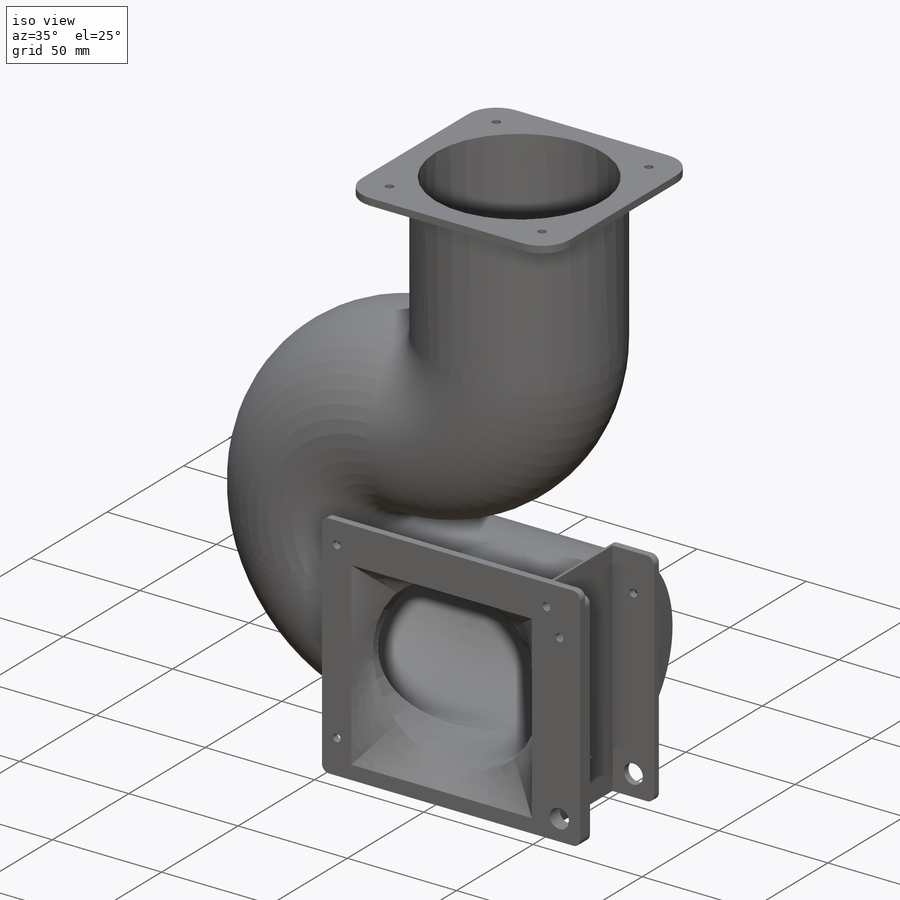
[diagram: iso view]
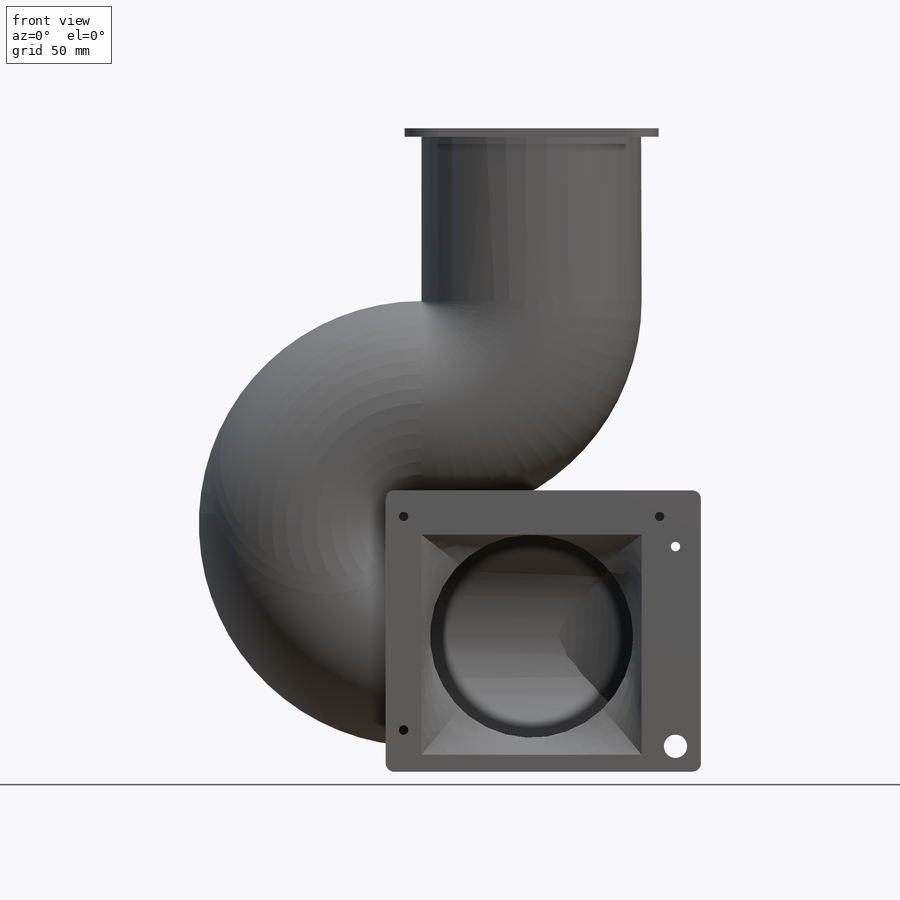
[diagram: front view]
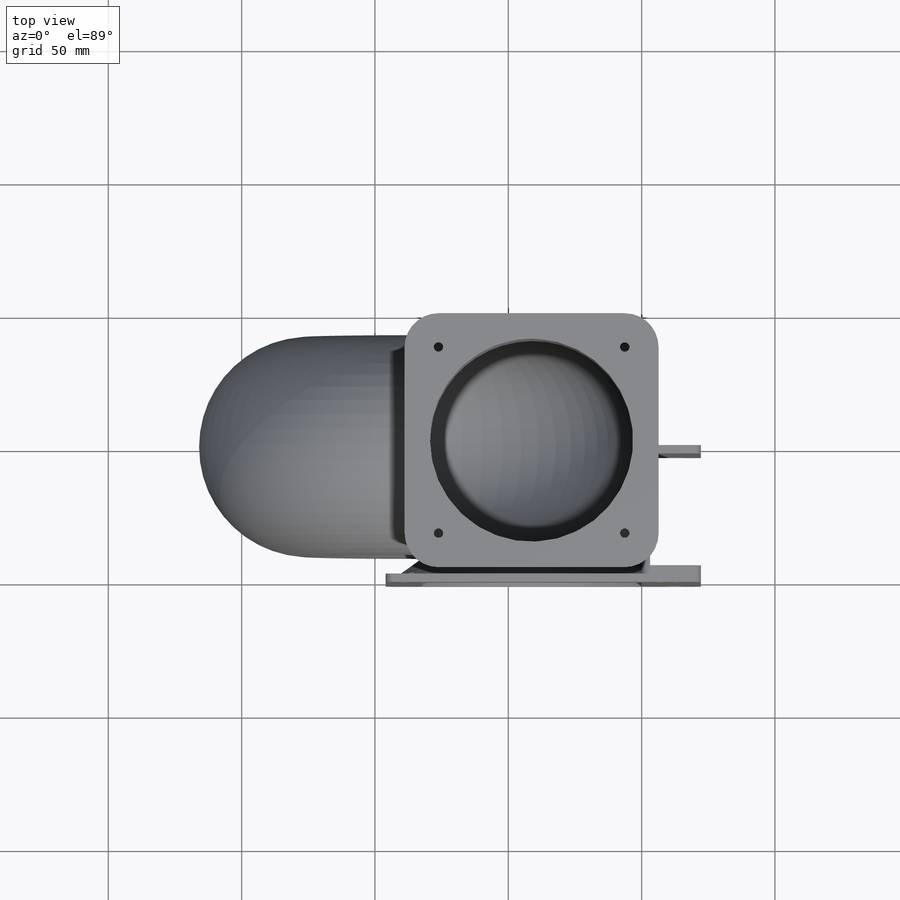
[diagram: top view]
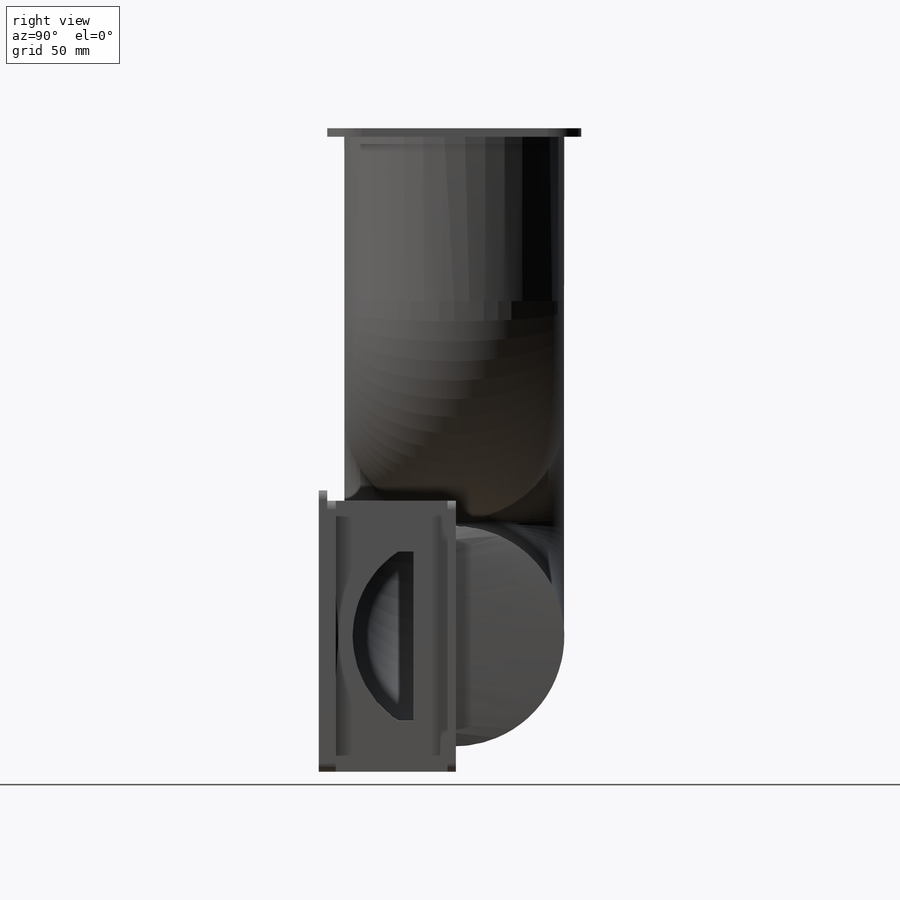
[diagram: right view]
SOLIDWORKS PART (.sldprt)
format: sldprt  version: not decoded by parser v0  size: 992,768 bytes
history: native  units: mm
features: sketch x31, extrude x9, cut_extrude x8, plane x6, fillet x3, sweep x2, material x1 + 1 further entry (+12 scaffold rows collapsed)
feature tree (73):
  scaffold x12  (default folders/planes/origin — collapsed)
  material  "Material <not specified>"
  "Annotations"  RD1=231.775mm RD2=3.925204mm
  sketch  "Sketch1"  dims[D1=76.2mm D2=3.175mm]
  plane  "Plane1"
  sketch  "Sketch2"  dims[c1.D1=0.0mm c1.D2=3.175mm c1.D3=84.455mm c2.D1=3.175mm c2.D2=84.455mm c2.D3=82.55mm c2.D4=64.77mm c2.D5=44.45mm c2.D6=41.275mm c3.D5=41.275mm c4.D5=90.0deg c4.D7=~96.811977deg]
  sweep  "Sweep10"
  plane  "Plane2"  Offset=3.175mm
  sketch  "Sketch8"  dims[c1.D1=69.85mm c1.D2=34.925mm c1.D3=34.925mm c1.D4=29.21mm c1.D5=69.85mm c1.D6=63.5mm c2.D5=3.175mm]
  sketch  "Sketch9"
  sketch  "Sketch10"
  sketch  "Sketch8<8>"
  plane  "Plane3"
  plane  "Plane4"  Offset=9.525mm
  sketch  "Sketch11"  dims[D1=3.175mm D2=~13.450204mm]
  sketch  "Sketch12"  dims[D1=82.55mm]
  extrude  "Boss-Extrude1"  [1 undecoded]
  sketch  "Sketch13"
  sketch  "Sketch14"  dims[D1=76.2mm]
  sketch  "Sketch15"  dims[D1=41.275mm D2=82.55mm D3=~13.450204mm D4=3.175mm D5=3.175mm]
  plane  "Plane5"
  sketch  "Sketch17"  dims[c1.D1=6.35mm c1.D2=15.875mm c1.D3=15.875mm c1.D4=9.525mm c2.D2=15.875mm c2.D3=15.875mm]
  extrude  "Boss-Extrude11"  Depth=3.175mm
  sketch  "Sketch19"  dims[D1=3.175mm D2=3.175mm]
  extrude  "Boss-Extrude12"  Depth=19.05mm
  fillet  "Fillet1"  Radius=3.175mm
  sketch  "Sketch20"  dims[D4=3.5mm D1=9.525mm D2=9.525mm D3=74.93mm]
  cut_extrude  "Cut-Extrude7"  Depth=101.6mm
  sketch  "Sketch25"
  extrude  "Boss-Extrude24"  Depth=3.175mm
  sketch  "Sketch28"  dims[D1=47.625mm D2=47.625mm D3=95.25mm D4=95.25mm D5=95.25mm]
  extrude  "Boss-Extrude27"  Depth=3.175mm
  sketch  "Sketch29"  dims[D9=3.5mm D10=3.5mm D11=3.5mm D12=3.5mm D1=12.7mm D2=12.7mm D3=12.7mm D4=12.7mm D5=12.7mm D6=12.7mm D7=12.7mm D8=12.7mm]
  cut_extrude  "Cut-Extrude14"  Depth=3.175mm
  fillet  "Fillet5"  Radius=12.7mm
  sketch  "Sketch32"
  extrude  "Boss-Extrude30"  [1 undecoded]
  sketch  "Sketch33"
  plane  "Plane7"
  sketch  "Sketch35"  dims[D1=38.1mm D2=38.1mm]
  extrude  "Boss-Extrude31"  [1 undecoded]
  sketch  "Sketch39"
  extrude  "Boss-Extrude41"  [1 undecoded]
  sketch  "Sketch43"
  extrude  "Boss-Extrude43"  Depth=3.175mm
  sketch  "Sketch44"  dims[D1=~3.925204mm]
  cut_extrude  "Cut-Extrude15"  Depth=3.175mm
  fillet  "Fillet6"  Radius=3.175mm
  sketch  "Sketch46"
  cut_extrude  "Cut-Extrude23"  Depth=5.1054mm
  sketch  "Sketch53"  dims[D4=3.5mm D1=9.525mm D2=9.525mm D3=74.93mm]
  cut_extrude  "Cut-Extrude24"  Depth=3.175mm
  sketch  "Sketch55"  dims[D1=3.175mm]
  sketch  "Sketch57"
  cut_extrude  "Cut-Extrude25"  [1 undecoded]
  sketch  "Sketch58"
  sketch  "Sketch59"
  sweep  "Cut-Loft10"
  sketch  "Sketch60"  dims[D1=3.5mm D2=3.5mm D3=3.5mm D4=~6.725204mm D5=~6.725204mm D6=~9.900204mm D7=15.625mm D8=~9.900204mm D9=15.5mm]
  cut_extrude  "Cut-Extrude26"  Depth=6.35mm
  sketch  "Sketch61"  dims[D1=~8.73125mm D2=~8.73125mm]
  cut_extrude  "Cut-Extrude27"  Depth=6.35mm
decode coverage: 33 of 53 modeling features carry decoded parameters; 1 rows unclassified (native names shown)
note: ~ marks probable driven/reference dimensions
note: 5 parameter values undecoded
summary: no parameter record found for 5 features
note: suppression state not decoded; provenance and decode notes live in map.json
